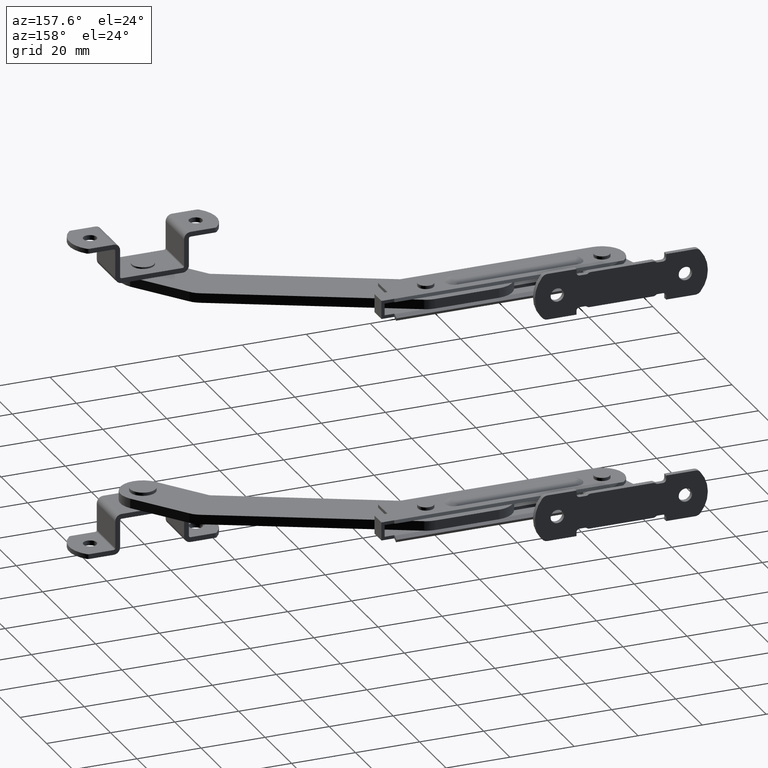
[diagram: clean part render]
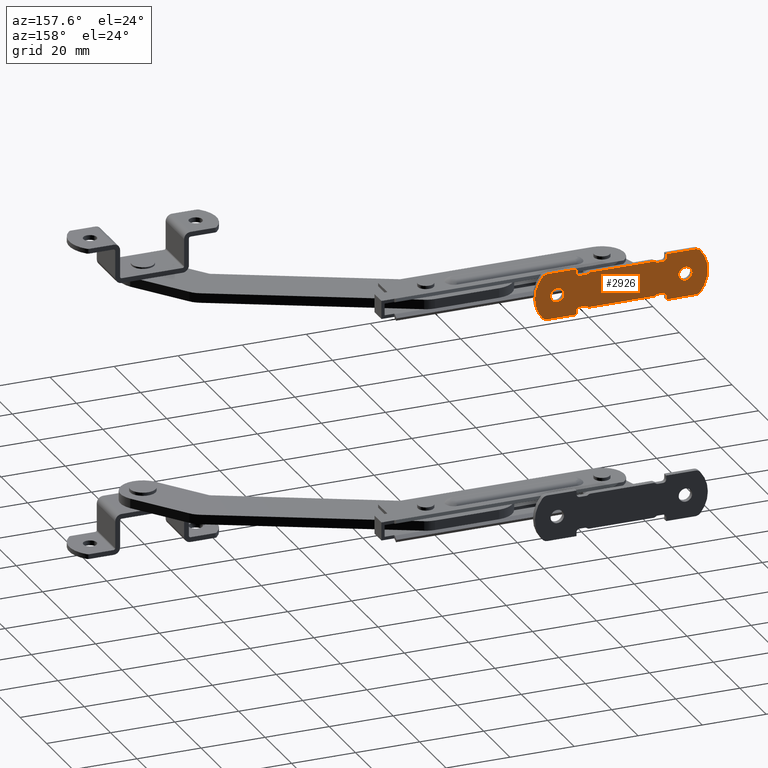
[diagram: same view with one face highlighted and labeled with its STEP entity id]
A machine part, auxiliary view. The second image highlights one B-rep face of the part: STEP entity #2926.
In plain terms, the highlighted planar face has unit normal (0, -1, 0).
Its self-contained STEP definition (entity closure, byte-faithful):
#196=LINE('',#4792,#407);
#233=LINE('',#5103,#444);
#235=LINE('',#5107,#446);
#236=LINE('',#5109,#447);
#237=LINE('',#5112,#448);
#238=LINE('',#5114,#449);
#239=LINE('',#5120,#450);
#240=LINE('',#5123,#451);
#241=LINE('',#5129,#452);
#242=LINE('',#5131,#453);
#243=LINE('',#5134,#454);
#244=LINE('',#5136,#455);
#245=LINE('',#5140,#456);
#246=LINE('',#5141,#457);
#407=VECTOR('',#3718,19.6771243444677);
#444=VECTOR('',#3857,9.12255538897661);
#446=VECTOR('',#3861,9.12255538897661);
#447=VECTOR('',#3862,1.2);
#448=VECTOR('',#3865,1.63397459621556);
#449=VECTOR('',#3866,20.0862994965043);
#450=VECTOR('',#3871,1.63397459621556);
#451=VECTOR('',#3874,1.2);
#452=VECTOR('',#3879,9.12255538897662);
#453=VECTOR('',#3880,1.2);
#454=VECTOR('',#3883,1.63397459621556);
#455=VECTOR('',#3884,2.04314974825214);
#456=VECTOR('',#3887,1.2);
#457=VECTOR('',#3888,9.12255538897662);
#591=FACE_BOUND('',#975,.T.);
#592=FACE_BOUND('',#976,.T.);
#782=FACE_OUTER_BOUND('',#974,.T.);
#974=EDGE_LOOP('',(#2350,#2351,#2352,#2353,#2354,#2355,#2356,#2357,#2358,
#2359,#2360,#2361,#2362,#2363,#2364,#2365,#2366,#2367,#2368,#2369,#2370,
#2371,#2372,#2373,#2374,#2375,#2376,#2377,#2378,#2379,#2380,#2381));
#975=EDGE_LOOP('',(#2382));
#976=EDGE_LOOP('',(#2383));
#1135=CIRCLE('',#3147,0.999999999999999);
#1137=CIRCLE('',#3150,1.);
#1138=CIRCLE('',#3153,1.);
#1139=CIRCLE('',#3155,1.);
#1148=CIRCLE('',#3176,0.999999999999999);
#1150=CIRCLE('',#3179,1.);
#1152=CIRCLE('',#3182,2.);
#1165=CIRCLE('',#3197,10.14);
#1166=CIRCLE('',#3199,2.);
#1167=CIRCLE('',#3201,2.);
#1168=CIRCLE('',#3204,1.);
#1169=CIRCLE('',#3205,1.);
#1170=CIRCLE('',#3206,0.999999999999999);
#1171=CIRCLE('',#3207,1.);
#1172=CIRCLE('',#3208,10.14);
#1173=CIRCLE('',#3209,2.);
#1174=CIRCLE('',#3210,1.);
#1175=CIRCLE('',#3211,1.);
#1176=CIRCLE('',#3212,2.1);
#1177=CIRCLE('',#3213,2.1);
#1336=VERTEX_POINT('',#4778);
#1337=VERTEX_POINT('',#4780);
#1339=VERTEX_POINT('',#4786);
#1340=VERTEX_POINT('',#4790);
#1341=VERTEX_POINT('',#4794);
#1343=VERTEX_POINT('',#4805);
#1370=VERTEX_POINT('',#5013);
#1371=VERTEX_POINT('',#5015);
#1373=VERTEX_POINT('',#5021);
#1376=VERTEX_POINT('',#5028);
#1377=VERTEX_POINT('',#5030);
#1403=VERTEX_POINT('',#5088);
#1404=VERTEX_POINT('',#5092);
#1405=VERTEX_POINT('',#5096);
#1406=VERTEX_POINT('',#5098);
#1407=VERTEX_POINT('',#5102);
#1408=VERTEX_POINT('',#5106);
#1409=VERTEX_POINT('',#5108);
#1410=VERTEX_POINT('',#5110);
#1411=VERTEX_POINT('',#5113);
#1412=VERTEX_POINT('',#5115);
#1413=VERTEX_POINT('',#5117);
#1414=VERTEX_POINT('',#5119);
#1415=VERTEX_POINT('',#5121);
#1416=VERTEX_POINT('',#5124);
#1417=VERTEX_POINT('',#5126);
#1418=VERTEX_POINT('',#5128);
#1419=VERTEX_POINT('',#5130);
#1420=VERTEX_POINT('',#5132);
#1421=VERTEX_POINT('',#5135);
#1422=VERTEX_POINT('',#5137);
#1423=VERTEX_POINT('',#5139);
#1424=VERTEX_POINT('',#5142);
#1425=VERTEX_POINT('',#5144);
#1663=EDGE_CURVE('',#1337,#1336,#1135,.F.);
#1667=EDGE_CURVE('',#1339,#1336,#1137,.T.);
#1669=EDGE_CURVE('',#1340,#1339,#196,.T.);
#1671=EDGE_CURVE('',#1341,#1340,#1138,.T.);
#1674=EDGE_CURVE('',#1343,#1341,#1139,.T.);
#1712=EDGE_CURVE('',#1371,#1370,#1148,.F.);
#1716=EDGE_CURVE('',#1373,#1370,#1150,.T.);
#1719=EDGE_CURVE('',#1376,#1377,#1152,.T.);
#1749=EDGE_CURVE('',#1403,#1377,#1165,.T.);
#1751=EDGE_CURVE('',#1403,#1404,#1166,.T.);
#1754=EDGE_CURVE('',#1405,#1406,#1167,.T.);
#1756=EDGE_CURVE('',#1406,#1407,#233,.T.);
#1758=EDGE_CURVE('',#1376,#1408,#235,.T.);
#1759=EDGE_CURVE('',#1408,#1409,#236,.T.);
#1760=EDGE_CURVE('',#1410,#1409,#1168,.T.);
#1761=EDGE_CURVE('',#1410,#1371,#237,.T.);
#1762=EDGE_CURVE('',#1373,#1411,#238,.T.);
#1763=EDGE_CURVE('',#1412,#1411,#1169,.T.);
#1764=EDGE_CURVE('',#1412,#1413,#1170,.F.);
#1765=EDGE_CURVE('',#1414,#1413,#239,.T.);
#1766=EDGE_CURVE('',#1415,#1414,#1171,.T.);
#1767=EDGE_CURVE('',#1407,#1415,#240,.T.);
#1768=EDGE_CURVE('',#1405,#1416,#1172,.T.);
#1769=EDGE_CURVE('',#1417,#1416,#1173,.T.);
#1770=EDGE_CURVE('',#1417,#1418,#241,.T.);
#1771=EDGE_CURVE('',#1418,#1419,#242,.T.);
#1772=EDGE_CURVE('',#1420,#1419,#1174,.T.);
#1773=EDGE_CURVE('',#1420,#1337,#243,.T.);
#1774=EDGE_CURVE('',#1421,#1343,#244,.T.);
#1775=EDGE_CURVE('',#1422,#1421,#1175,.T.);
#1776=EDGE_CURVE('',#1423,#1422,#245,.T.);
#1777=EDGE_CURVE('',#1404,#1423,#246,.T.);
#1778=EDGE_CURVE('',#1424,#1424,#1176,.T.);
#1779=EDGE_CURVE('',#1425,#1425,#1177,.T.);
#2350=ORIENTED_EDGE('',*,*,#1719,.F.);
#2351=ORIENTED_EDGE('',*,*,#1758,.T.);
#2352=ORIENTED_EDGE('',*,*,#1759,.T.);
#2353=ORIENTED_EDGE('',*,*,#1760,.F.);
#2354=ORIENTED_EDGE('',*,*,#1761,.T.);
#2355=ORIENTED_EDGE('',*,*,#1712,.T.);
#2356=ORIENTED_EDGE('',*,*,#1716,.F.);
#2357=ORIENTED_EDGE('',*,*,#1762,.T.);
#2358=ORIENTED_EDGE('',*,*,#1763,.F.);
#2359=ORIENTED_EDGE('',*,*,#1764,.T.);
#2360=ORIENTED_EDGE('',*,*,#1765,.F.);
#2361=ORIENTED_EDGE('',*,*,#1766,.F.);
#2362=ORIENTED_EDGE('',*,*,#1767,.F.);
#2363=ORIENTED_EDGE('',*,*,#1756,.F.);
#2364=ORIENTED_EDGE('',*,*,#1754,.F.);
#2365=ORIENTED_EDGE('',*,*,#1768,.T.);
#2366=ORIENTED_EDGE('',*,*,#1769,.F.);
#2367=ORIENTED_EDGE('',*,*,#1770,.T.);
#2368=ORIENTED_EDGE('',*,*,#1771,.T.);
#2369=ORIENTED_EDGE('',*,*,#1772,.F.);
#2370=ORIENTED_EDGE('',*,*,#1773,.T.);
#2371=ORIENTED_EDGE('',*,*,#1663,.T.);
#2372=ORIENTED_EDGE('',*,*,#1667,.F.);
#2373=ORIENTED_EDGE('',*,*,#1669,.F.);
#2374=ORIENTED_EDGE('',*,*,#1671,.F.);
#2375=ORIENTED_EDGE('',*,*,#1674,.F.);
#2376=ORIENTED_EDGE('',*,*,#1774,.F.);
#2377=ORIENTED_EDGE('',*,*,#1775,.F.);
#2378=ORIENTED_EDGE('',*,*,#1776,.F.);
#2379=ORIENTED_EDGE('',*,*,#1777,.F.);
#2380=ORIENTED_EDGE('',*,*,#1751,.F.);
#2381=ORIENTED_EDGE('',*,*,#1749,.T.);
#2382=ORIENTED_EDGE('',*,*,#1778,.F.);
#2383=ORIENTED_EDGE('',*,*,#1779,.T.);
#2795=PLANE('',#3203);
#2926=ADVANCED_FACE('',(#782,#591,#592),#2795,.F.);
#3147=AXIS2_PLACEMENT_3D('',#4781,#3705,#3706);
#3150=AXIS2_PLACEMENT_3D('',#4788,#3713,#3714);
#3153=AXIS2_PLACEMENT_3D('',#4796,#3722,#3723);
#3155=AXIS2_PLACEMENT_3D('',#4807,#3727,#3728);
#3176=AXIS2_PLACEMENT_3D('',#5016,#3779,#3780);
#3179=AXIS2_PLACEMENT_3D('',#5023,#3787,#3788);
#3182=AXIS2_PLACEMENT_3D('',#5031,#3794,#3795);
#3197=AXIS2_PLACEMENT_3D('',#5089,#3841,#3842);
#3199=AXIS2_PLACEMENT_3D('',#5093,#3846,#3847);
#3201=AXIS2_PLACEMENT_3D('',#5099,#3852,#3853);
#3203=AXIS2_PLACEMENT_3D('',#5105,#3859,#3860);
#3204=AXIS2_PLACEMENT_3D('',#5111,#3863,#3864);
#3205=AXIS2_PLACEMENT_3D('',#5116,#3867,#3868);
#3206=AXIS2_PLACEMENT_3D('',#5118,#3869,#3870);
#3207=AXIS2_PLACEMENT_3D('',#5122,#3872,#3873);
#3208=AXIS2_PLACEMENT_3D('',#5125,#3875,#3876);
#3209=AXIS2_PLACEMENT_3D('',#5127,#3877,#3878);
#3210=AXIS2_PLACEMENT_3D('',#5133,#3881,#3882);
#3211=AXIS2_PLACEMENT_3D('',#5138,#3885,#3886);
#3212=AXIS2_PLACEMENT_3D('',#5143,#3889,#3890);
#3213=AXIS2_PLACEMENT_3D('',#5145,#3891,#3892);
#3705=DIRECTION('center_axis',(0.,0.,-1.));
#3706=DIRECTION('ref_axis',(0.866025403784439,-0.5,0.));
#3713=DIRECTION('center_axis',(0.,0.,1.));
#3714=DIRECTION('ref_axis',(-0.353553390593274,0.935414346693485,0.));
#3718=DIRECTION('',(-1.,-1.3683204459747E-17,0.));
#3722=DIRECTION('center_axis',(0.,0.,1.));
#3723=DIRECTION('ref_axis',(0.866025403784439,0.499999999999999,0.));
#3727=DIRECTION('center_axis',(0.,0.,-1.));
#3728=DIRECTION('ref_axis',(-0.353553390593274,-0.935414346693485,0.));
#3779=DIRECTION('center_axis',(0.,0.,-1.));
#3780=DIRECTION('ref_axis',(-0.866025403784439,0.5,0.));
#3787=DIRECTION('center_axis',(0.,0.,1.));
#3788=DIRECTION('ref_axis',(0.353553390593274,-0.935414346693485,0.));
#3794=DIRECTION('center_axis',(0.,0.,1.));
#3795=DIRECTION('ref_axis',(0.424958445721085,-0.905212858619628,0.));
#3841=DIRECTION('center_axis',(0.,0.,-1.));
#3842=DIRECTION('ref_axis',(-0.70414201183432,0.710059171597633,0.));
#3846=DIRECTION('center_axis',(0.,0.,1.));
#3847=DIRECTION('ref_axis',(0.424958445721086,0.905212858619628,0.));
#3852=DIRECTION('center_axis',(0.,0.,1.));
#3853=DIRECTION('ref_axis',(-0.424958445721085,-0.905212858619628,0.));
#3857=DIRECTION('',(1.,-2.22044604925031E-16,0.));
#3859=DIRECTION('center_axis',(0.,0.,1.));
#3860=DIRECTION('ref_axis',(1.,0.,0.));
#3861=DIRECTION('',(-1.,-2.22044604925031E-16,0.));
#3862=DIRECTION('',(0.,1.,0.));
#3863=DIRECTION('center_axis',(0.,0.,-1.));
#3864=DIRECTION('ref_axis',(0.707106781186548,0.707106781186548,0.));
#3865=DIRECTION('',(-1.,0.,0.));
#3866=DIRECTION('',(-1.,0.,0.));
#3867=DIRECTION('center_axis',(0.,0.,1.));
#3868=DIRECTION('ref_axis',(-0.353553390593274,-0.935414346693485,0.));
#3869=DIRECTION('center_axis',(0.,0.,-1.));
#3870=DIRECTION('ref_axis',(0.866025403784439,0.5,0.));
#3871=DIRECTION('',(1.,0.,0.));
#3872=DIRECTION('center_axis',(0.,0.,-1.));
#3873=DIRECTION('ref_axis',(-0.70710678118655,0.707106781186545,0.));
#3874=DIRECTION('',(0.,1.,0.));
#3875=DIRECTION('center_axis',(0.,0.,-1.));
#3876=DIRECTION('ref_axis',(0.70414201183432,-0.710059171597633,0.));
#3877=DIRECTION('center_axis',(0.,0.,1.));
#3878=DIRECTION('ref_axis',(-0.424958445721086,0.905212858619628,0.));
#3879=DIRECTION('',(1.,2.35727809384778E-16,0.));
#3880=DIRECTION('',(1.3683204459747E-17,-1.,0.));
#3881=DIRECTION('center_axis',(0.,0.,-1.));
#3882=DIRECTION('ref_axis',(-0.707106781186548,-0.707106781186548,0.));
#3883=DIRECTION('',(1.,1.3683204459747E-17,0.));
#3884=DIRECTION('',(-1.,-1.3683204459747E-17,0.));
#3885=DIRECTION('center_axis',(0.,0.,-1.));
#3886=DIRECTION('ref_axis',(0.70710678118655,-0.707106781186545,0.));
#3887=DIRECTION('',(1.3683204459747E-17,-1.,0.));
#3888=DIRECTION('',(-1.,2.08361400465284E-16,0.));
#3889=DIRECTION('center_axis',(0.,0.,-1.));
#3890=DIRECTION('ref_axis',(1.,5.8316514245112E-17,0.));
#3891=DIRECTION('center_axis',(0.,0.,1.));
#3892=DIRECTION('ref_axis',(-1.,5.8316514245112E-17,0.));
#4778=CARTESIAN_POINT('',(-10.7045875760183,5.25,0.));
#4780=CARTESIAN_POINT('',(-11.3660254037844,5.,0.));
#4781=CARTESIAN_POINT('Origin',(-11.3660254037844,6.,0.));
#4786=CARTESIAN_POINT('',(-10.0431497482521,5.5,0.));
#4788=CARTESIAN_POINT('Origin',(-10.0431497482521,4.5,0.));
#4790=CARTESIAN_POINT('',(9.63397459621556,5.5,0.));
#4792=CARTESIAN_POINT('',(10.5,5.5,0.));
#4794=CARTESIAN_POINT('',(10.2954124239817,5.25,0.));
#4796=CARTESIAN_POINT('Origin',(9.63397459621556,4.5,0.));
#4805=CARTESIAN_POINT('',(10.9568502517479,5.,0.));
#4807=CARTESIAN_POINT('Origin',(10.9568502517479,6.,0.));
#5013=CARTESIAN_POINT('',(10.7045875760183,-5.25,0.));
#5015=CARTESIAN_POINT('',(11.3660254037844,-5.,0.));
#5016=CARTESIAN_POINT('Origin',(11.3660254037844,-6.,0.));
#5021=CARTESIAN_POINT('',(10.0431497482521,-5.5,0.));
#5023=CARTESIAN_POINT('Origin',(10.0431497482521,-4.5,0.));
#5028=CARTESIAN_POINT('',(23.1225553889766,-7.2,0.));
#5030=CARTESIAN_POINT('',(24.6612667867596,-6.47764127764128,0.));
#5031=CARTESIAN_POINT('Origin',(23.1225553889766,-5.2,0.));
#5088=CARTESIAN_POINT('',(24.6612667867596,6.47764127764127,0.));
#5089=CARTESIAN_POINT('Origin',(16.86,2.16354267849366E-15,0.));
#5092=CARTESIAN_POINT('',(23.1225553889766,7.2,0.));
#5093=CARTESIAN_POINT('Origin',(23.1225553889766,5.2,0.));
#5096=CARTESIAN_POINT('',(-24.6612667867596,-6.47764127764128,0.));
#5098=CARTESIAN_POINT('',(-23.1225553889766,-7.2,0.));
#5099=CARTESIAN_POINT('Origin',(-23.1225553889766,-5.2,0.));
#5102=CARTESIAN_POINT('',(-14.,-7.2,0.));
#5103=CARTESIAN_POINT('',(-24.,-7.2,0.));
#5105=CARTESIAN_POINT('Origin',(13.0321515526563,-3.15149795566884,0.));
#5106=CARTESIAN_POINT('',(14.,-7.2,0.));
#5107=CARTESIAN_POINT('',(24.,-7.2,0.));
#5108=CARTESIAN_POINT('',(14.,-6.,0.));
#5109=CARTESIAN_POINT('',(14.,-7.2,0.));
#5110=CARTESIAN_POINT('',(13.,-5.,0.));
#5111=CARTESIAN_POINT('Origin',(13.,-6.,0.));
#5112=CARTESIAN_POINT('',(14.,-5.,0.));
#5113=CARTESIAN_POINT('',(-10.0431497482521,-5.5,0.));
#5114=CARTESIAN_POINT('',(10.5,-5.5,0.));
#5115=CARTESIAN_POINT('',(-10.7045875760183,-5.25,0.));
#5116=CARTESIAN_POINT('Origin',(-10.0431497482521,-4.5,0.));
#5117=CARTESIAN_POINT('',(-11.3660254037844,-5.,0.));
#5118=CARTESIAN_POINT('Origin',(-11.3660254037844,-6.,0.));
#5119=CARTESIAN_POINT('',(-13.,-5.,0.));
#5120=CARTESIAN_POINT('',(-14.,-5.,0.));
#5121=CARTESIAN_POINT('',(-14.,-6.,0.));
#5122=CARTESIAN_POINT('Origin',(-13.,-6.,0.));
#5123=CARTESIAN_POINT('',(-14.,-7.2,0.));
#5124=CARTESIAN_POINT('',(-24.6612667867596,6.47764127764127,0.));
#5125=CARTESIAN_POINT('Origin',(-16.86,-2.39424150568499E-15,0.));
#5126=CARTESIAN_POINT('',(-23.1225553889766,7.2,0.));
#5127=CARTESIAN_POINT('Origin',(-23.1225553889766,5.2,0.));
#5128=CARTESIAN_POINT('',(-14.,7.2,0.));
#5129=CARTESIAN_POINT('',(-24.,7.2,0.));
#5130=CARTESIAN_POINT('',(-14.,6.,0.));
#5131=CARTESIAN_POINT('',(-14.,7.2,0.));
#5132=CARTESIAN_POINT('',(-13.,5.,0.));
#5133=CARTESIAN_POINT('Origin',(-13.,6.,0.));
#5134=CARTESIAN_POINT('',(-14.,5.,0.));
#5135=CARTESIAN_POINT('',(13.,5.,0.));
#5136=CARTESIAN_POINT('',(14.,5.,0.));
#5137=CARTESIAN_POINT('',(14.,6.,0.));
#5138=CARTESIAN_POINT('Origin',(13.,6.,0.));
#5139=CARTESIAN_POINT('',(14.,7.2,0.));
#5140=CARTESIAN_POINT('',(14.,7.2,0.));
#5141=CARTESIAN_POINT('',(24.,7.2,0.));
#5142=CARTESIAN_POINT('',(-17.9,1.22464679914735E-16,0.));
#5143=CARTESIAN_POINT('Origin',(-20.,0.,0.));
#5144=CARTESIAN_POINT('',(17.9,1.22464679914735E-16,0.));
#5145=CARTESIAN_POINT('Origin',(20.,0.,0.));